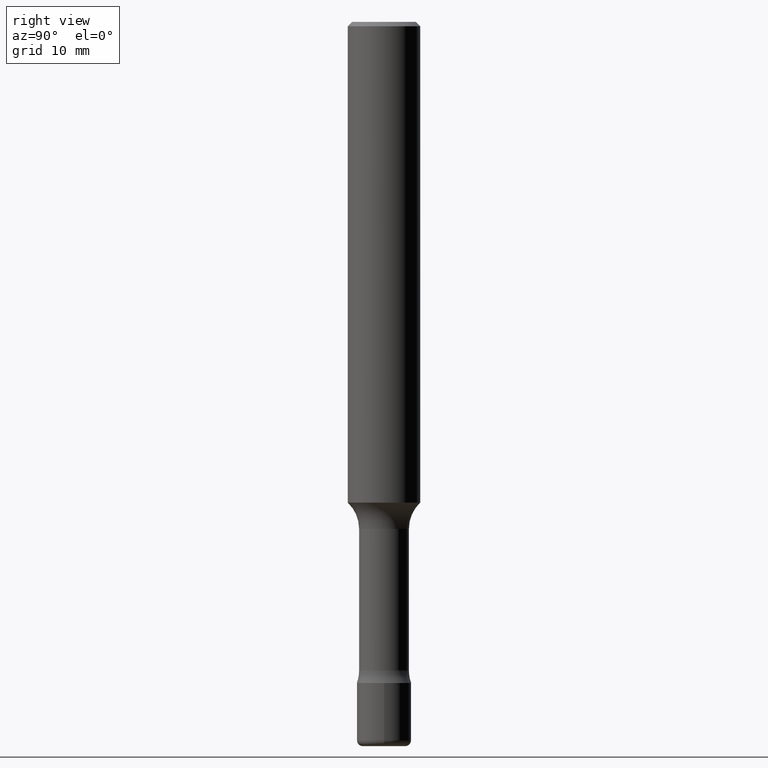
[diagram: clean part render]
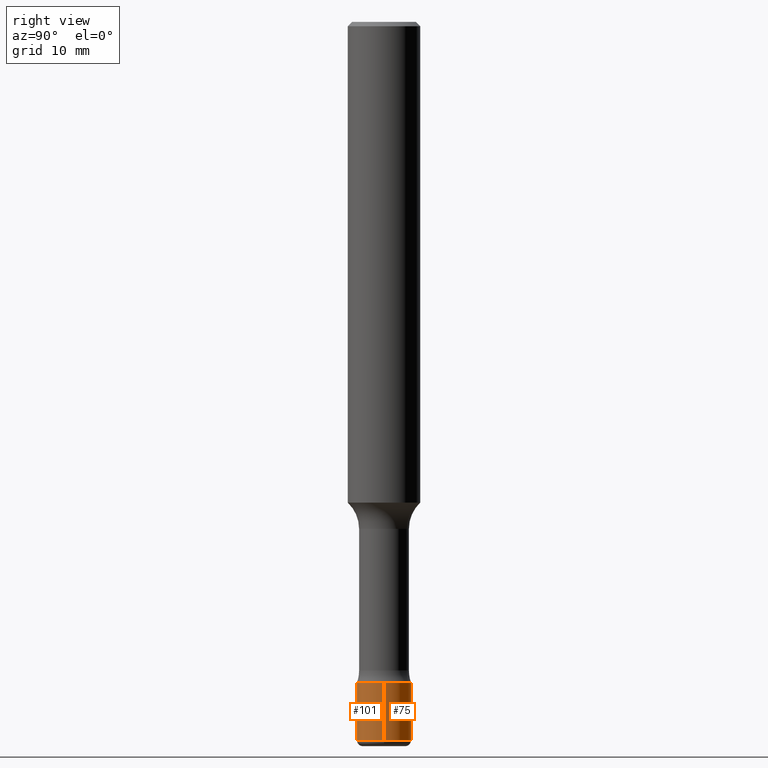
[diagram: same view with one multi-face feature highlighted, each face labeled with its STEP entity id]
A machine part, right view. The highlighted faces form ONE feature: a constant-radius fillet chain: 2 tangent blend faces with common blend radius 2.3813 mm. The faces share edges in the B-rep.
Their STEP definitions:
[1] entity #101 (Cylinder):
#12 = DIRECTION ( 'NONE',  ( 1.000000000000000000, -6.982962677686265922E-15, 4.876176775795935793E-29 ) ) ;
#69 = CARTESIAN_POINT ( 'NONE',  ( 0.09375000000000011102, -9.313526471364089937E-15, -2.480000000000000426 ) ) ;
#74 = ORIENTED_EDGE ( 'NONE', *, *, #504, .T. ) ;
#81 = VERTEX_POINT ( 'NONE', #172 ) ;
#83 = CARTESIAN_POINT ( 'NONE',  ( 0.09375000000000002776, -6.546527510330876027E-16, 4.571415727308691207E-30 ) ) ;
#97 = DIRECTION ( 'NONE',  ( 1.000000000000000000, -6.982962677686261189E-15, 0.000000000000000000 ) ) ;
#101 = ADVANCED_FACE ( 'NONE', ( #378 ), #342, .T. ) ;
#108 = LINE ( 'NONE', #276, #339 ) ;
#150 = AXIS2_PLACEMENT_3D ( 'NONE', #443, #403, #367 ) ;
#160 = CIRCLE ( 'NONE', #329, 0.09375000000000001388 ) ;
#163 = VERTEX_POINT ( 'NONE', #176 ) ;
#172 = CARTESIAN_POINT ( 'NONE',  ( 0.09375000000000001388, -8.622213166273146125E-15, -2.282000000000000028 ) ) ;
#174 = EDGE_CURVE ( 'NONE', #317, #81, #160, .T. ) ;
#176 = CARTESIAN_POINT ( 'NONE',  ( -0.09375000000000011102, -7.992739905555907720E-15, -2.480000000000000426 ) ) ;
#210 = VECTOR ( 'NONE', #248, 39.37007874015748143 ) ;
#248 = DIRECTION ( 'NONE',  ( -2.445468806185136877E-29, 3.491481338843145188E-15, 1.000000000000000000 ) ) ;
#276 = CARTESIAN_POINT ( 'NONE',  ( -0.09375000000000002776, 6.661338147750941215E-16, -4.611501647113975397E-30 ) ) ;
#278 = EDGE_LOOP ( 'NONE', ( #514, #74, #290, #352 ) ) ;
#290 = ORIENTED_EDGE ( 'NONE', *, *, #462, .T. ) ;
#303 = CARTESIAN_POINT ( 'NONE',  ( 0.000000000000000000, 0.000000000000000000, 0.000000000000000000 ) ) ;
#315 = DIRECTION ( 'NONE',  ( -2.445468806185136877E-29, 3.491481338843145188E-15, 1.000000000000000000 ) ) ;
#317 = VERTEX_POINT ( 'NONE', #516 ) ;
#329 = AXIS2_PLACEMENT_3D ( 'NONE', #422, #494, #97 ) ;
#339 = VECTOR ( 'NONE', #315, 39.37007874015748143 ) ;
#342 = CYLINDRICAL_SURFACE ( 'NONE', #348, 0.09375000000000002776 ) ;
#348 = AXIS2_PLACEMENT_3D ( 'NONE', #303, #371, #12 ) ;
#352 = ORIENTED_EDGE ( 'NONE', *, *, #174, .F. ) ;
#367 = DIRECTION ( 'NONE',  ( 1.000000000000000000, -6.982962677686260400E-15, 0.000000000000000000 ) ) ;
#371 = DIRECTION ( 'NONE',  ( -2.445468806185136597E-29, 3.491481338843145583E-15, 1.000000000000000000 ) ) ;
#372 = EDGE_CURVE ( 'NONE', #163, #317, #108, .T. ) ;
#377 = VERTEX_POINT ( 'NONE', #69 ) ;
#378 = FACE_OUTER_BOUND ( 'NONE', #278, .T. ) ;
#403 = DIRECTION ( 'NONE',  ( -2.445468806185136597E-29, 3.491481338843145583E-15, 1.000000000000000000 ) ) ;
#422 = CARTESIAN_POINT ( 'NONE',  ( 5.580559815714482064E-29, -7.967560415240059410E-15, -2.282000000000000028 ) ) ;
#441 = LINE ( 'NONE', #83, #210 ) ;
#443 = CARTESIAN_POINT ( 'NONE',  ( 6.064762639339139522E-29, -8.658873720331001644E-15, -2.480000000000000426 ) ) ;
#458 = CIRCLE ( 'NONE', #150, 0.09375000000000002776 ) ;
#462 = EDGE_CURVE ( 'NONE', #377, #81, #441, .T. ) ;
#494 = DIRECTION ( 'NONE',  ( -2.445468806185136597E-29, 3.491481338843145583E-15, 1.000000000000000000 ) ) ;
#504 = EDGE_CURVE ( 'NONE', #163, #377, #458, .T. ) ;
#514 = ORIENTED_EDGE ( 'NONE', *, *, #372, .F. ) ;
#516 = CARTESIAN_POINT ( 'NONE',  ( -0.09375000000000001388, -7.647083253010435814E-15, -2.282000000000000028 ) ) ;
[2] entity #75 (Cylinder):
#34 = DIRECTION ( 'NONE',  ( 1.000000000000000000, -6.982962677686260400E-15, 0.000000000000000000 ) ) ;
#37 = DIRECTION ( 'NONE',  ( -2.445468806185136597E-29, 3.491481338843145583E-15, 1.000000000000000000 ) ) ;
#69 = CARTESIAN_POINT ( 'NONE',  ( 0.09375000000000011102, -9.313526471364089937E-15, -2.480000000000000426 ) ) ;
#75 = ADVANCED_FACE ( 'NONE', ( #213 ), #302, .T. ) ;
#81 = VERTEX_POINT ( 'NONE', #172 ) ;
#83 = CARTESIAN_POINT ( 'NONE',  ( 0.09375000000000002776, -6.546527510330876027E-16, 4.571415727308691207E-30 ) ) ;
#105 = DIRECTION ( 'NONE',  ( -2.445468806185136597E-29, 3.491481338843145583E-15, 1.000000000000000000 ) ) ;
#108 = LINE ( 'NONE', #276, #339 ) ;
#158 = AXIS2_PLACEMENT_3D ( 'NONE', #296, #370, #454 ) ;
#163 = VERTEX_POINT ( 'NONE', #176 ) ;
#172 = CARTESIAN_POINT ( 'NONE',  ( 0.09375000000000001388, -8.622213166273146125E-15, -2.282000000000000028 ) ) ;
#176 = CARTESIAN_POINT ( 'NONE',  ( -0.09375000000000011102, -7.992739905555907720E-15, -2.480000000000000426 ) ) ;
#196 = ORIENTED_EDGE ( 'NONE', *, *, #236, .T. ) ;
#209 = EDGE_CURVE ( 'NONE', #81, #317, #311, .T. ) ;
#210 = VECTOR ( 'NONE', #248, 39.37007874015748143 ) ;
#213 = FACE_OUTER_BOUND ( 'NONE', #241, .T. ) ;
#236 = EDGE_CURVE ( 'NONE', #377, #163, #307, .T. ) ;
#241 = EDGE_LOOP ( 'NONE', ( #196, #288, #430, #401 ) ) ;
#248 = DIRECTION ( 'NONE',  ( -2.445468806185136877E-29, 3.491481338843145188E-15, 1.000000000000000000 ) ) ;
#264 = DIRECTION ( 'NONE',  ( 1.000000000000000000, -6.982962677686261189E-15, 0.000000000000000000 ) ) ;
#276 = CARTESIAN_POINT ( 'NONE',  ( -0.09375000000000002776, 6.661338147750941215E-16, -4.611501647113975397E-30 ) ) ;
#288 = ORIENTED_EDGE ( 'NONE', *, *, #372, .T. ) ;
#296 = CARTESIAN_POINT ( 'NONE',  ( 0.000000000000000000, 0.000000000000000000, 0.000000000000000000 ) ) ;
#302 = CYLINDRICAL_SURFACE ( 'NONE', #158, 0.09375000000000002776 ) ;
#307 = CIRCLE ( 'NONE', #419, 0.09375000000000002776 ) ;
#311 = CIRCLE ( 'NONE', #515, 0.09375000000000001388 ) ;
#315 = DIRECTION ( 'NONE',  ( -2.445468806185136877E-29, 3.491481338843145188E-15, 1.000000000000000000 ) ) ;
#317 = VERTEX_POINT ( 'NONE', #516 ) ;
#339 = VECTOR ( 'NONE', #315, 39.37007874015748143 ) ;
#370 = DIRECTION ( 'NONE',  ( -2.445468806185136597E-29, 3.491481338843145583E-15, 1.000000000000000000 ) ) ;
#372 = EDGE_CURVE ( 'NONE', #163, #317, #108, .T. ) ;
#377 = VERTEX_POINT ( 'NONE', #69 ) ;
#401 = ORIENTED_EDGE ( 'NONE', *, *, #462, .F. ) ;
#419 = AXIS2_PLACEMENT_3D ( 'NONE', #513, #37, #34 ) ;
#430 = ORIENTED_EDGE ( 'NONE', *, *, #209, .F. ) ;
#441 = LINE ( 'NONE', #83, #210 ) ;
#454 = DIRECTION ( 'NONE',  ( 1.000000000000000000, -6.982962677686265922E-15, 4.876176775795935793E-29 ) ) ;
#459 = CARTESIAN_POINT ( 'NONE',  ( 5.580559815714482064E-29, -7.967560415240059410E-15, -2.282000000000000028 ) ) ;
#462 = EDGE_CURVE ( 'NONE', #377, #81, #441, .T. ) ;
#513 = CARTESIAN_POINT ( 'NONE',  ( 6.064762639339139522E-29, -8.658873720331001644E-15, -2.480000000000000426 ) ) ;
#515 = AXIS2_PLACEMENT_3D ( 'NONE', #459, #105, #264 ) ;
#516 = CARTESIAN_POINT ( 'NONE',  ( -0.09375000000000001388, -7.647083253010435814E-15, -2.282000000000000028 ) ) ;